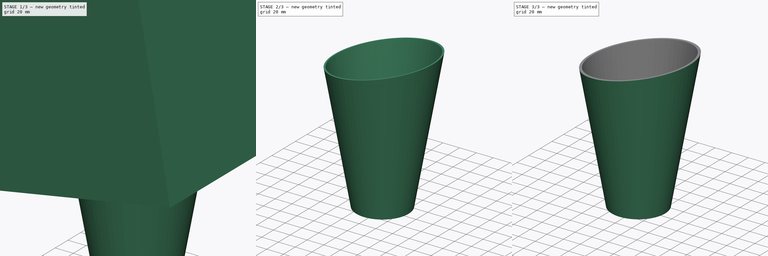
[diagram: build sequence overview — one tinted view per stage of 3, left to right]
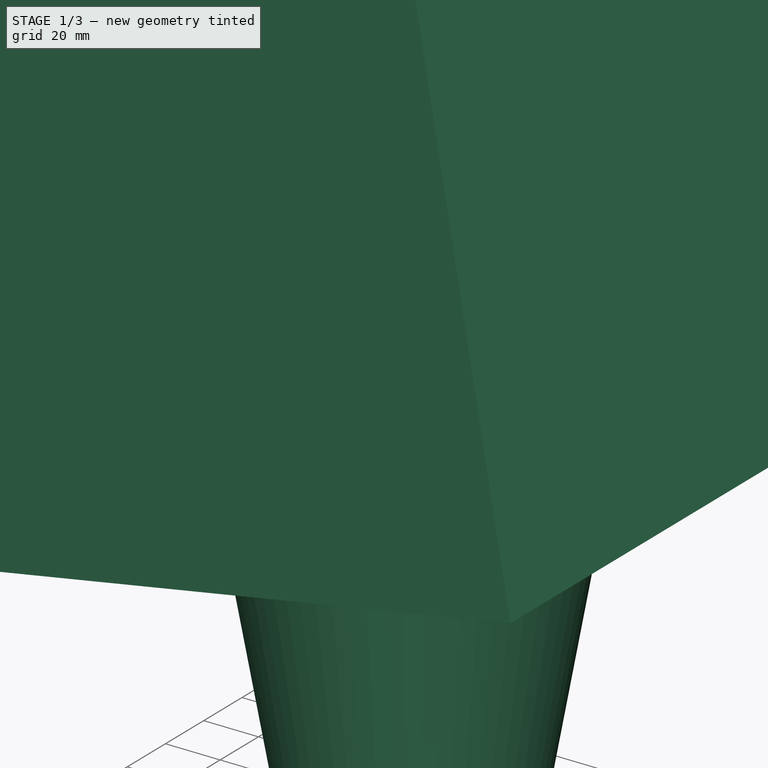
[diagram: stage 1 of 3 — iso view after this stage's code; geometry added in this stage tinted green]
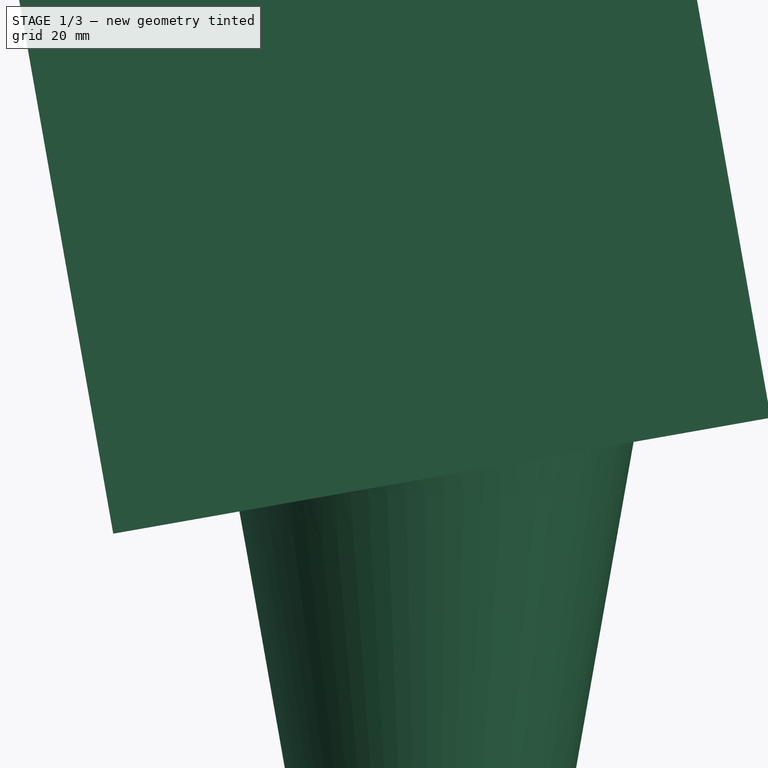
[diagram: stage 1 of 3 — front view after this stage's code; geometry added in this stage tinted green]
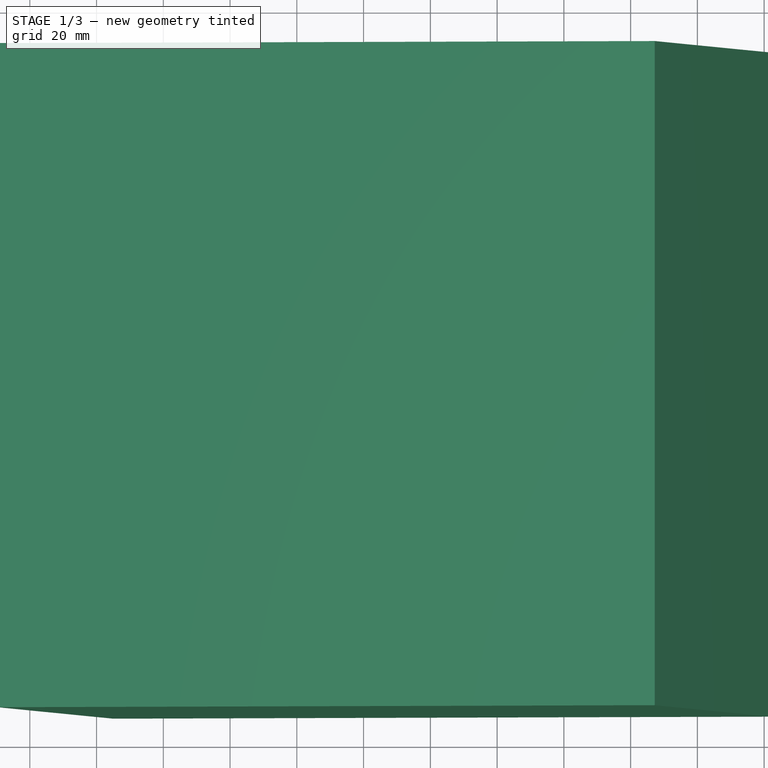
[diagram: stage 1 of 3 — top view after this stage's code; geometry added in this stage tinted green]
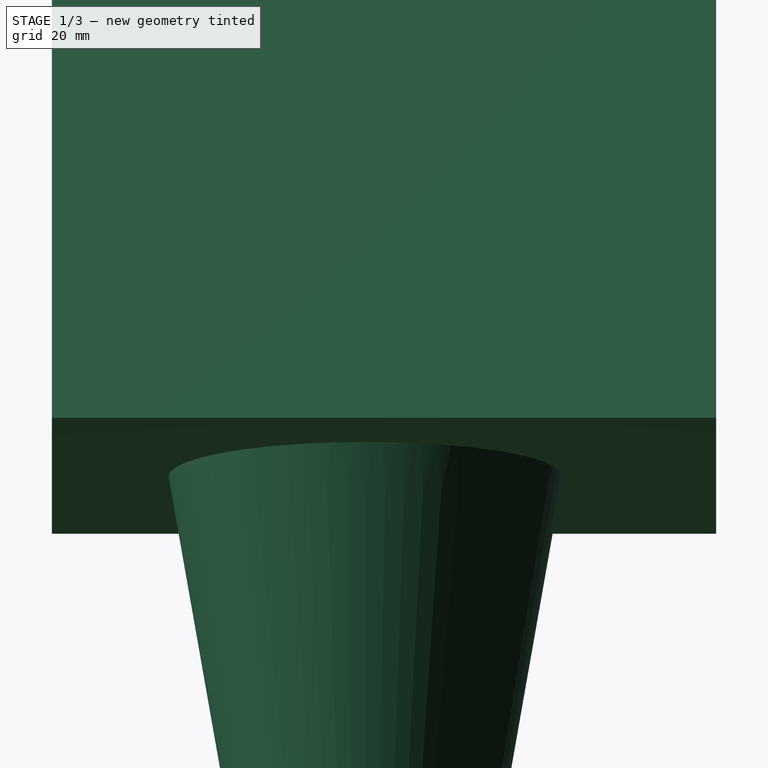
[diagram: stage 1 of 3 — right view after this stage's code; geometry added in this stage tinted green]
FCSTD DOCUMENT  (FreeCAD 0.15R4671 (Git))
Label: ikea lamp shade
License: All rights reserved
LicenseURL: http://en.wikipedia.org/wiki/All_rights_reserved
objects: Sketcher::SketchObject×3, PartDesign::Revolution×3, Part::Cut×3, Part::Box×2
note: 14 computed .brp shape members not serialized (recipe doc carries the construction recipe); baked Part::Feature solids carry a one-line shape summary decoded from their .brp

FEATURE [Part::Box] Box001  label="Cube001"
  Height = 200
  Length = 200
  Placement = pos=(-95,-94,142) rot=(0,-1,0;0.174533rad)
  Width = 199
FEATURE [Sketcher::SketchObject] Sketch002
  Placement = pos=(0,0,0) rot=(1,0,0;1.5708rad)
  sketch-geometry (4):
    g0: LineSegment StartX=31 StartY=0 StartZ=0 EndX=60.9756 EndY=170 EndZ=0
    g1: LineSegment StartX=60.9756 StartY=170 StartZ=0 EndX=58.9756 EndY=170 EndZ=0
    g2: LineSegment StartX=58.9756 StartY=170 StartZ=0 EndX=29 EndY=0 EndZ=0
    g3: LineSegment StartX=29 StartY=0 StartZ=0 EndX=31 EndY=0 EndZ=0
  constraints (12):
    c: PointOnObject(g0,g-1)
    c: Coincident(g0,g1)
    c: Horizontal(g1)
    c: Coincident(g1,g2)
    c: Coincident(g2,g3)
    c: Coincident(g3,g0)
    c: PointOnObject(g2,g-1)
    c: Equal(g1,g3)
    c: DistanceX(g1) = -2
    c: Angle(g2,g-2) = 0.174533
    c: DistanceX(g-1,g0) = 31
    c: DistanceY(g-1,g1) = 170
FEATURE [PartDesign::Revolution] Revolution002
  Angle = 360
  Axis = (0,0,1)
  Base = (0,0,0)
  Placement = pos=(0,0,0) rot=(1,0,0;1.5708rad)
  ReferenceAxis = -> Sketch002 [V_Axis]
  Reversed = true
  Sketch = -> Sketch002
FEATURE [Part::Cut] Cut002  label="center shade mounting ring"
  Base = -> Revolution002
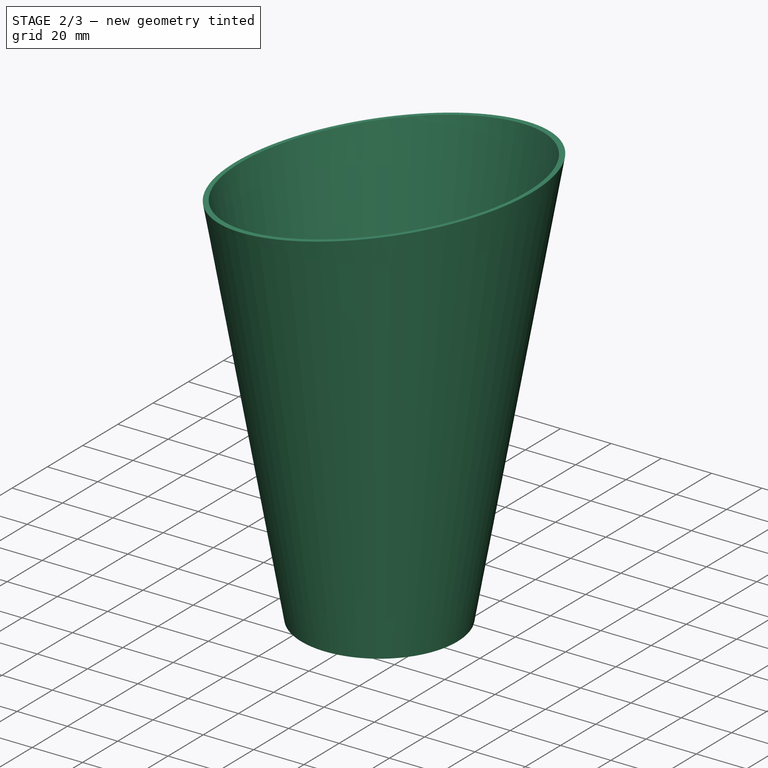
[diagram: stage 2 of 3 — iso view after this stage's code; geometry added in this stage tinted green]
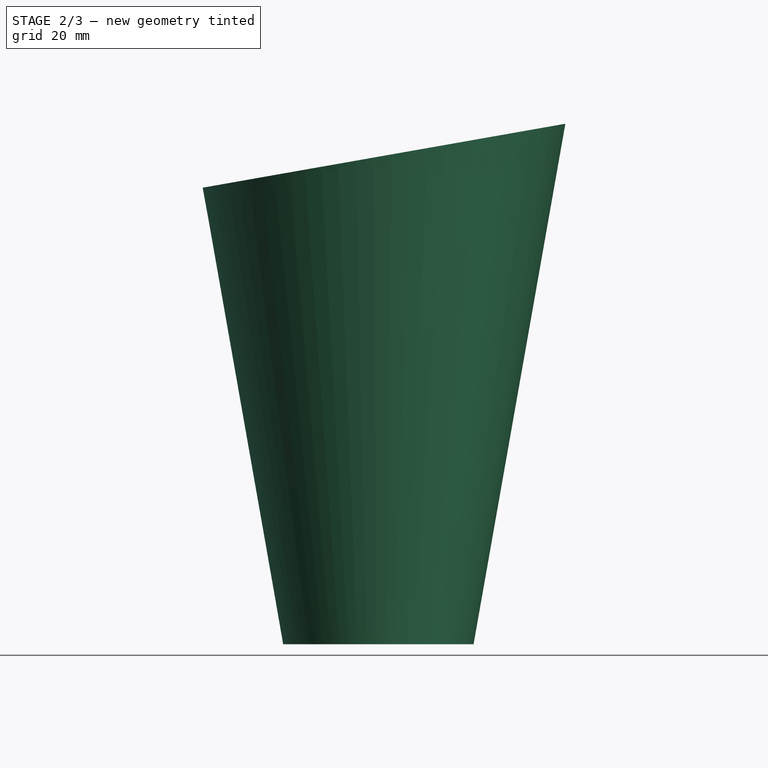
[diagram: stage 2 of 3 — front view after this stage's code; geometry added in this stage tinted green]
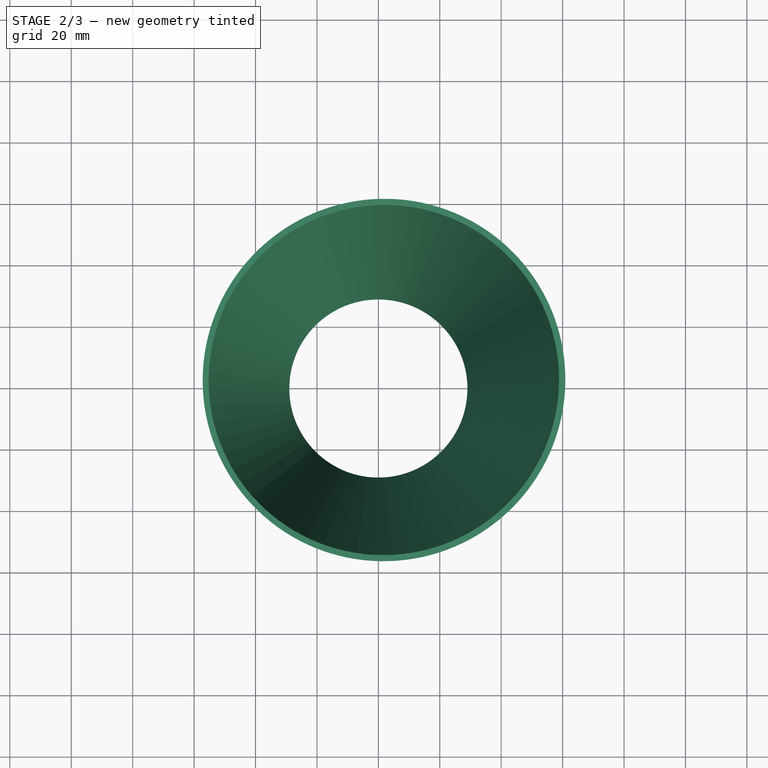
[diagram: stage 2 of 3 — top view after this stage's code; geometry added in this stage tinted green]
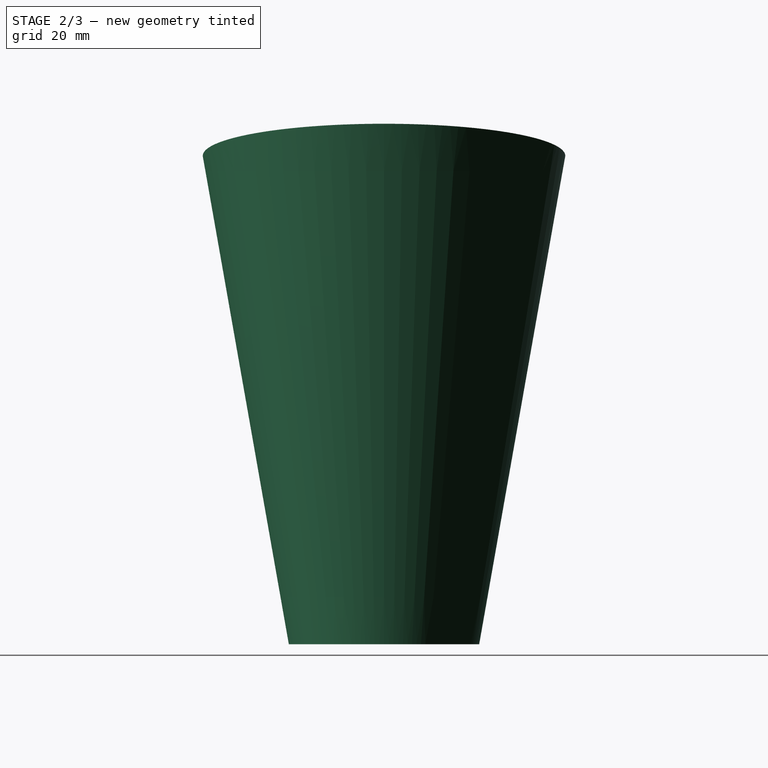
[diagram: stage 2 of 3 — right view after this stage's code; geometry added in this stage tinted green]
FEATURE [Sketcher::SketchObject] Sketch001
  Placement = pos=(0,0,0) rot=(1,0,0;1.5708rad)
  sketch-geometry (4):
    g0: LineSegment StartX=31 StartY=0 StartZ=0 EndX=60.9756 EndY=170 EndZ=0
    g1: LineSegment StartX=60.9756 StartY=170 StartZ=0 EndX=58.9756 EndY=170 EndZ=0
    g2: LineSegment StartX=58.9756 StartY=170 StartZ=0 EndX=29 EndY=0 EndZ=0
    g3: LineSegment StartX=29 StartY=0 StartZ=0 EndX=31 EndY=0 EndZ=0
  constraints (12):
    c: PointOnObject(g0,g-1)
    c: Coincident(g0,g1)
    c: Horizontal(g1)
    c: Coincident(g1,g2)
    c: Coincident(g2,g3)
    c: Coincident(g3,g0)
    c: PointOnObject(g2,g-1)
    c: Equal(g1,g3)
    c: DistanceX(g1) = -2
    c: Angle(g2,g-2) = 0.174533
    c: DistanceX(g-1,g0) = 31
    c: DistanceY(g-1,g1) = 170
FEATURE [PartDesign::Revolution] Revolution001
  Angle = 360
  Axis = (0,0,1)
  Base = (0,0,0)
  Placement = pos=(0,0,0) rot=(1,0,0;1.5708rad)
  ReferenceAxis = -> Sketch001 [V_Axis]
  Reversed = true
  Sketch = -> Sketch001
FEATURE [Part::Cut] Cut001  label="center shade (62mm base)"
  Base = -> Revolution001
  Tool = -> Box001
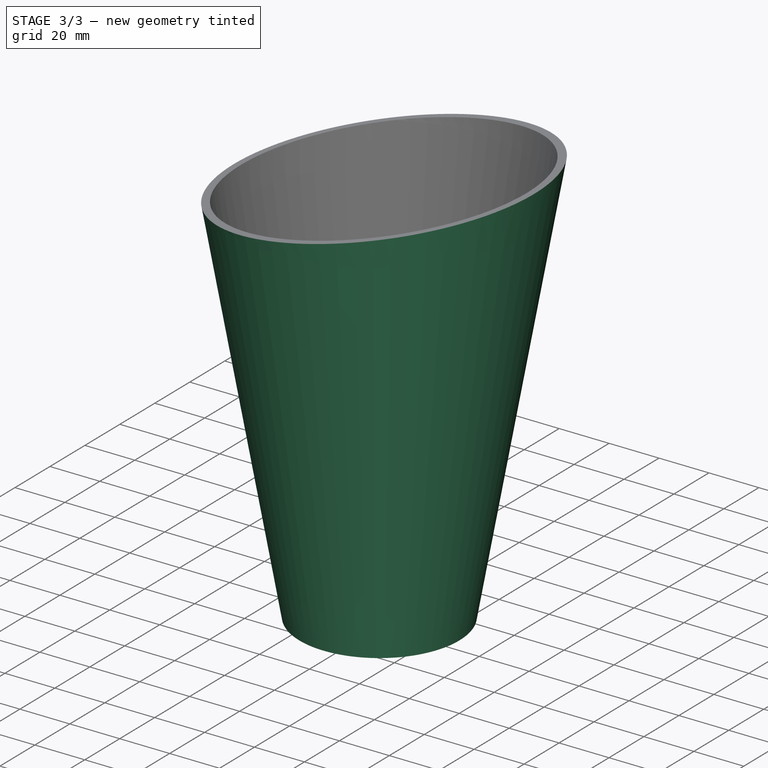
[diagram: stage 3 of 3 — iso view after this stage's code; geometry added in this stage tinted green]
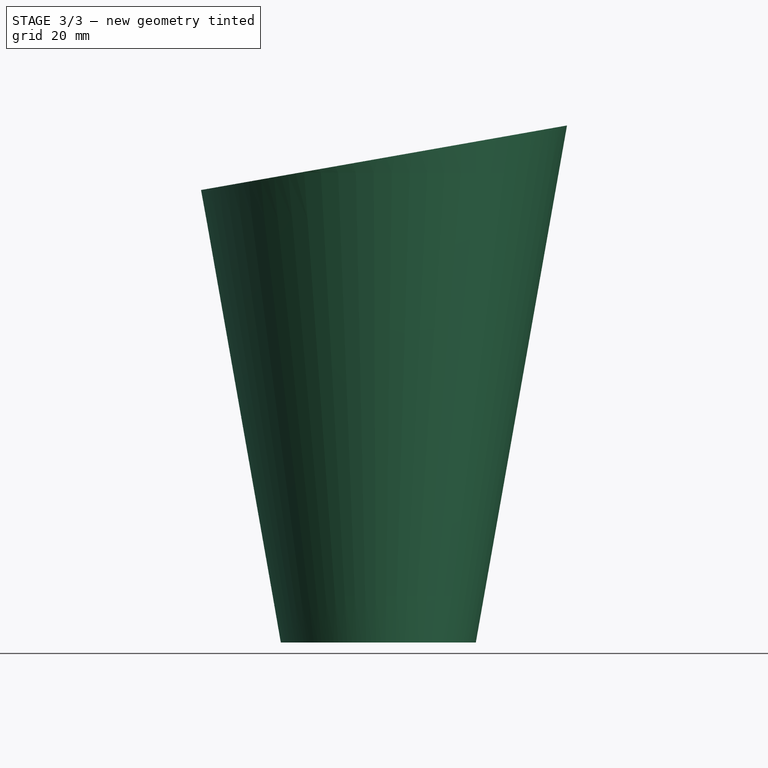
[diagram: stage 3 of 3 — front view after this stage's code; geometry added in this stage tinted green]
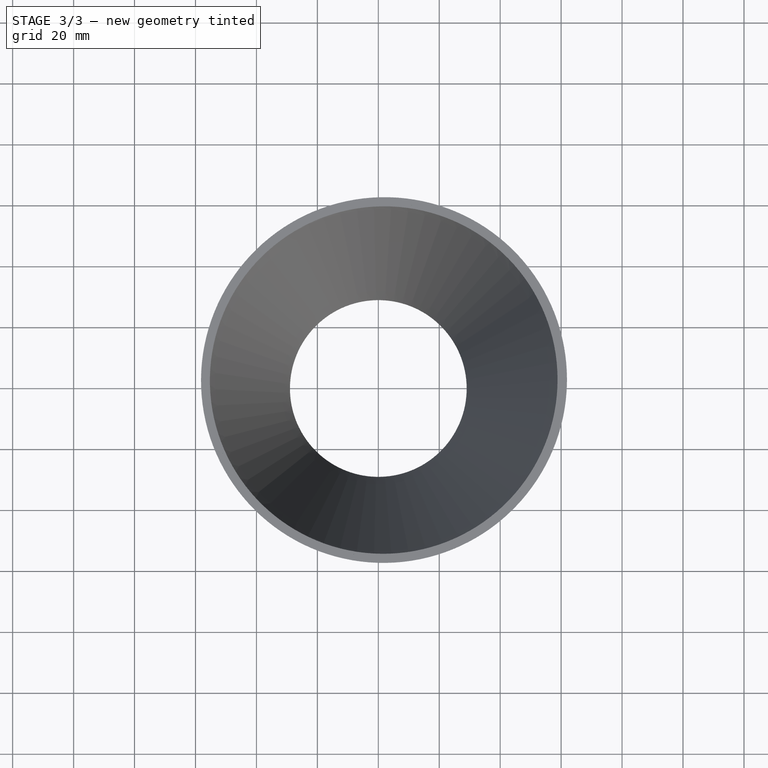
[diagram: stage 3 of 3 — top view after this stage's code; geometry added in this stage tinted green]
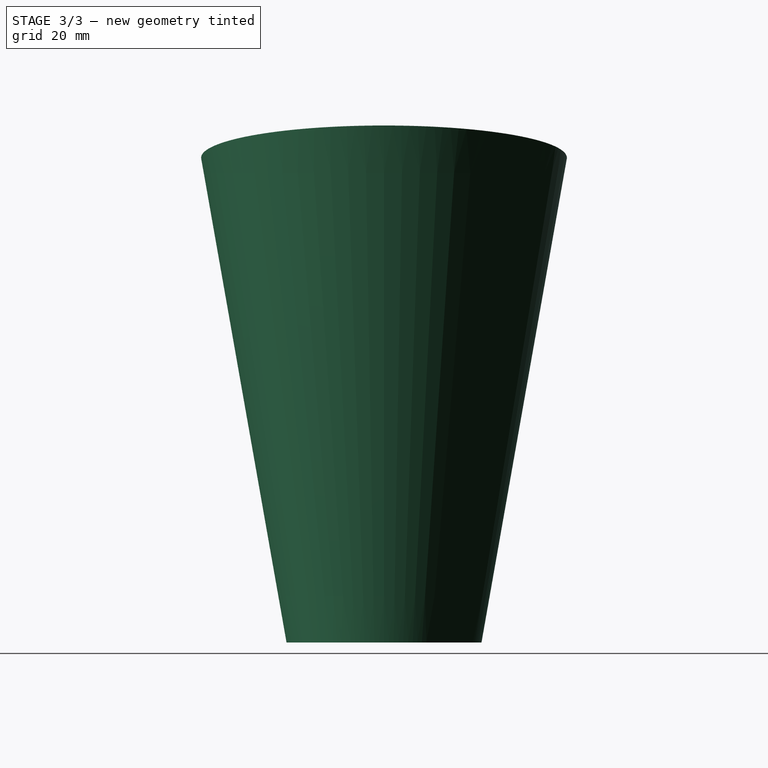
[diagram: stage 3 of 3 — right view after this stage's code; geometry added in this stage tinted green]
FEATURE [Sketcher::SketchObject] Sketch
  Placement = pos=(0,0,0) rot=(1,0,0;1.5708rad)
  sketch-geometry (4):
    g0: LineSegment StartX=32 StartY=0 StartZ=0 EndX=61.9756 EndY=170 EndZ=0
    g1: LineSegment StartX=61.9756 StartY=170 StartZ=0 EndX=59.9756 EndY=170 EndZ=0
    g2: LineSegment StartX=59.9756 StartY=170 StartZ=0 EndX=30 EndY=0 EndZ=0
    g3: LineSegment StartX=30 StartY=0 StartZ=0 EndX=32 EndY=0 EndZ=0
  constraints (12):
    c: PointOnObject(g0,g-1)
    c: Coincident(g0,g1)
    c: Horizontal(g1)
    c: Coincident(g1,g2)
    c: Coincident(g2,g3)
    c: Coincident(g3,g0)
    c: PointOnObject(g2,g-1)
    c: Equal(g1,g3)
    c: DistanceX(g1) = -2
    c: Angle(g2,g-2) = 0.174533
    c: DistanceX(g-1,g0) = 32
    c: DistanceY(g-1,g1) = 170
FEATURE [PartDesign::Revolution] Revolution
  Angle = 360
  Axis = (0,0,1)
  Base = (0,0,0)
  Placement = pos=(0,0,0) rot=(1,0,0;1.5708rad)
  ReferenceAxis = -> Sketch [V_Axis]
  Reversed = true
  Sketch = -> Sketch
FEATURE [Part::Box] Box  label="Cube"
  Height = 200
  Length = 200
  Placement = pos=(-95,-94,142) rot=(0,-1,0;0.174533rad)
  Width = 199
FEATURE [Part::Cut] Cut  label="side shade (64mm base)"
  Base = -> Revolution
  Tool = -> Box
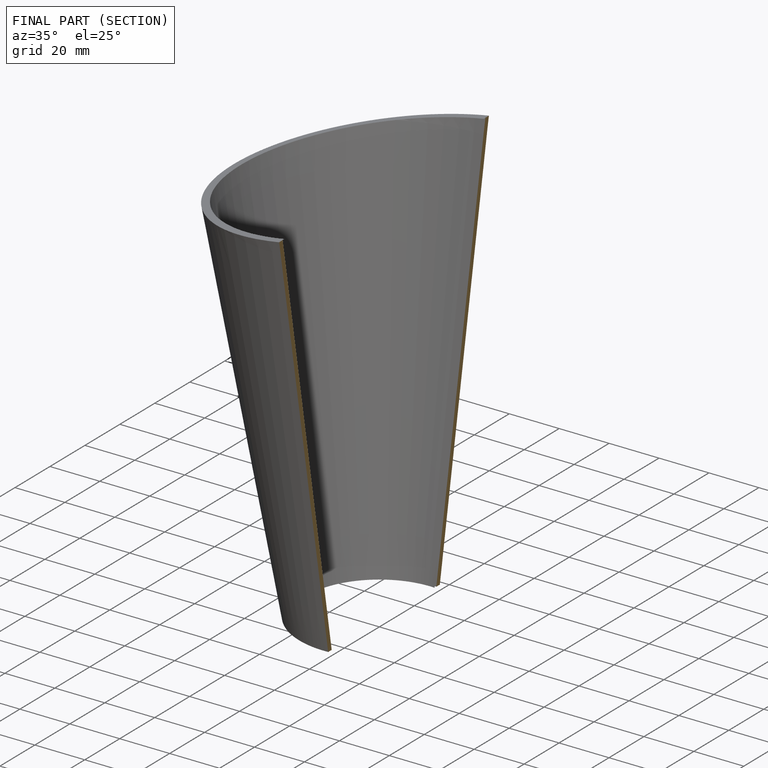
[diagram: finished part — half-section view (interior)]
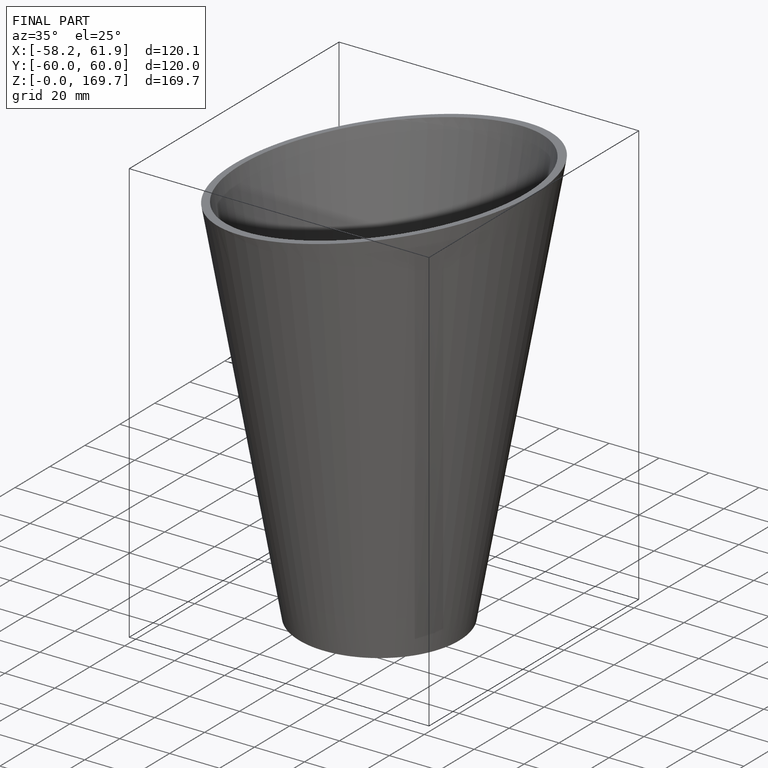
[diagram: finished part — iso view with bounding-box wireframe]
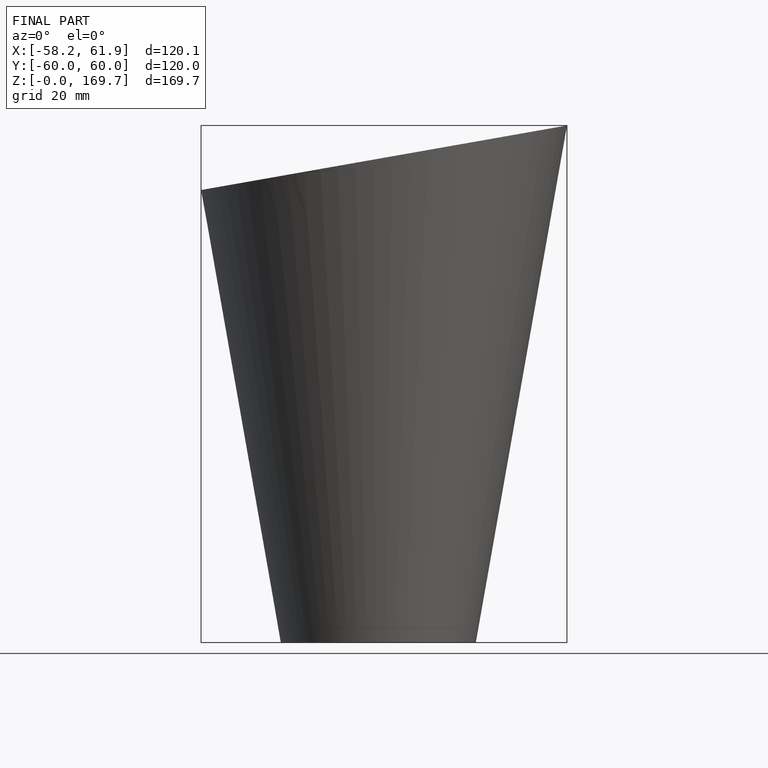
[diagram: finished part — front view with bounding-box wireframe]
